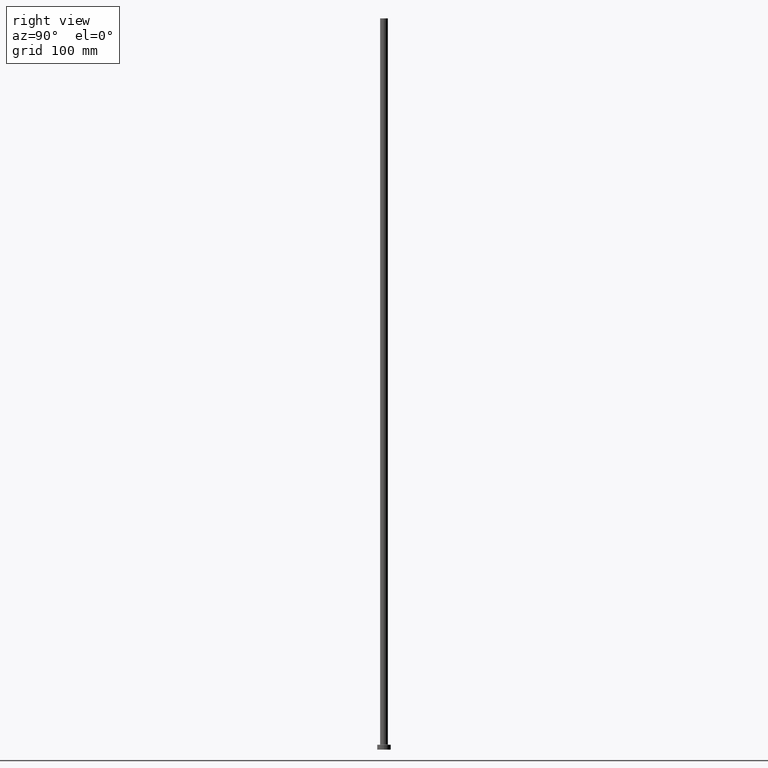
[diagram: clean part render]
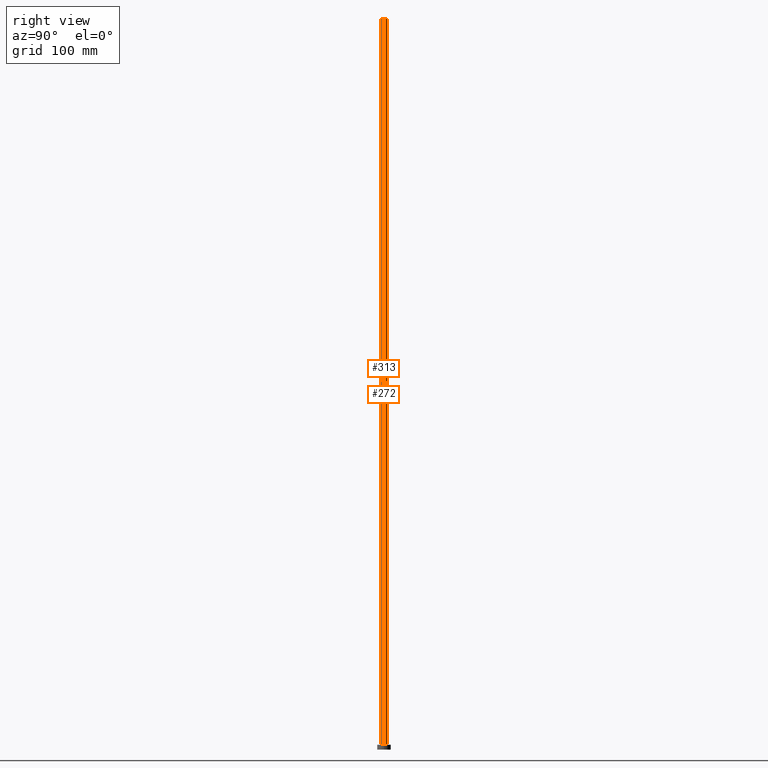
[diagram: same view with one multi-face feature highlighted, each face labeled with its STEP entity id]
A machine part, right view. The highlighted faces form ONE feature: a constant-radius fillet chain: 2 tangent blend faces with common blend radius 4 mm. The faces share edges in the B-rep.
Their STEP definitions:
[1] entity #313 (Cylinder):
#20 = CIRCLE ( 'NONE', #296, 4.000000000000000000 ) ;
#24 = CARTESIAN_POINT ( 'NONE',  ( -4.000000000000000000, 0.000000000000000000, 5.499999999999949374 ) ) ;
#32 = VERTEX_POINT ( 'NONE', #24 ) ;
#44 = CARTESIAN_POINT ( 'NONE',  ( 4.000000000000000000, 4.898587196589412829E-16, 750.0000000000000000 ) ) ;
#47 = DIRECTION ( 'NONE',  ( -0.000000000000000000, -0.000000000000000000, -1.000000000000000000 ) ) ;
#55 = AXIS2_PLACEMENT_3D ( 'NONE', #370, #452, #56 ) ;
#56 = DIRECTION ( 'NONE',  ( 1.000000000000000000, 0.000000000000000000, 0.000000000000000000 ) ) ;
#72 = CARTESIAN_POINT ( 'NONE',  ( 4.000000000000000000, 4.898587196589412829E-16, 5.499999999999949374 ) ) ;
#99 = VERTEX_POINT ( 'NONE', #454 ) ;
#100 = VECTOR ( 'NONE', #242, 1000.000000000000000 ) ;
#107 = CARTESIAN_POINT ( 'NONE',  ( 0.000000000000000000, 0.000000000000000000, 750.0000000000000000 ) ) ;
#111 = DIRECTION ( 'NONE',  ( -0.000000000000000000, -0.000000000000000000, -1.000000000000000000 ) ) ;
#120 = CIRCLE ( 'NONE', #55, 4.000000000000000000 ) ;
#145 = CYLINDRICAL_SURFACE ( 'NONE', #422, 4.000000000000000000 ) ;
#162 = ORIENTED_EDGE ( 'NONE', *, *, #234, .T. ) ;
#166 = CARTESIAN_POINT ( 'NONE',  ( -4.000000000000000000, 0.000000000000000000, 750.0000000000000000 ) ) ;
#168 = CARTESIAN_POINT ( 'NONE',  ( 0.000000000000000000, 0.000000000000000000, 750.0000000000000000 ) ) ;
#173 = EDGE_CURVE ( 'NONE', #32, #375, #120, .T. ) ;
#187 = DIRECTION ( 'NONE',  ( -1.000000000000000000, 0.000000000000000000, 0.000000000000000000 ) ) ;
#216 = LINE ( 'NONE', #44, #259 ) ;
#234 = EDGE_CURVE ( 'NONE', #99, #32, #311, .T. ) ;
#242 = DIRECTION ( 'NONE',  ( -0.000000000000000000, -0.000000000000000000, -1.000000000000000000 ) ) ;
#247 = VERTEX_POINT ( 'NONE', #346 ) ;
#259 = VECTOR ( 'NONE', #47, 1000.000000000000000 ) ;
#296 = AXIS2_PLACEMENT_3D ( 'NONE', #168, #312, #459 ) ;
#300 = EDGE_CURVE ( 'NONE', #99, #247, #20, .T. ) ;
#311 = LINE ( 'NONE', #166, #100 ) ;
#312 = DIRECTION ( 'NONE',  ( 0.000000000000000000, 0.000000000000000000, 1.000000000000000000 ) ) ;
#313 = ADVANCED_FACE ( 'NONE', ( #349 ), #145, .T. ) ;
#346 = CARTESIAN_POINT ( 'NONE',  ( 4.000000000000000000, 4.898587196589412829E-16, 750.0000000000000000 ) ) ;
#349 = FACE_OUTER_BOUND ( 'NONE', #428, .T. ) ;
#365 = ORIENTED_EDGE ( 'NONE', *, *, #366, .F. ) ;
#366 = EDGE_CURVE ( 'NONE', #247, #375, #216, .T. ) ;
#370 = CARTESIAN_POINT ( 'NONE',  ( 0.000000000000000000, 0.000000000000000000, 5.499999999999949374 ) ) ;
#375 = VERTEX_POINT ( 'NONE', #72 ) ;
#388 = ORIENTED_EDGE ( 'NONE', *, *, #300, .F. ) ;
#393 = ORIENTED_EDGE ( 'NONE', *, *, #173, .T. ) ;
#422 = AXIS2_PLACEMENT_3D ( 'NONE', #107, #111, #187 ) ;
#428 = EDGE_LOOP ( 'NONE', ( #365, #388, #162, #393 ) ) ;
#452 = DIRECTION ( 'NONE',  ( 0.000000000000000000, 0.000000000000000000, 1.000000000000000000 ) ) ;
#454 = CARTESIAN_POINT ( 'NONE',  ( -4.000000000000000000, 0.000000000000000000, 750.0000000000000000 ) ) ;
#459 = DIRECTION ( 'NONE',  ( 1.000000000000000000, 0.000000000000000000, 0.000000000000000000 ) ) ;
[2] entity #272 (Cylinder):
#16 = ORIENTED_EDGE ( 'NONE', *, *, #411, .F. ) ;
#19 = CARTESIAN_POINT ( 'NONE',  ( 0.000000000000000000, 0.000000000000000000, 5.499999999999949374 ) ) ;
#24 = CARTESIAN_POINT ( 'NONE',  ( -4.000000000000000000, 0.000000000000000000, 5.499999999999949374 ) ) ;
#25 = AXIS2_PLACEMENT_3D ( 'NONE', #276, #130, #34 ) ;
#32 = VERTEX_POINT ( 'NONE', #24 ) ;
#34 = DIRECTION ( 'NONE',  ( -1.000000000000000000, 0.000000000000000000, 0.000000000000000000 ) ) ;
#44 = CARTESIAN_POINT ( 'NONE',  ( 4.000000000000000000, 4.898587196589412829E-16, 750.0000000000000000 ) ) ;
#47 = DIRECTION ( 'NONE',  ( -0.000000000000000000, -0.000000000000000000, -1.000000000000000000 ) ) ;
#72 = CARTESIAN_POINT ( 'NONE',  ( 4.000000000000000000, 4.898587196589412829E-16, 5.499999999999949374 ) ) ;
#83 = CIRCLE ( 'NONE', #319, 4.000000000000000000 ) ;
#88 = DIRECTION ( 'NONE',  ( 1.000000000000000000, 0.000000000000000000, 0.000000000000000000 ) ) ;
#99 = VERTEX_POINT ( 'NONE', #454 ) ;
#100 = VECTOR ( 'NONE', #242, 1000.000000000000000 ) ;
#130 = DIRECTION ( 'NONE',  ( -0.000000000000000000, -0.000000000000000000, -1.000000000000000000 ) ) ;
#166 = CARTESIAN_POINT ( 'NONE',  ( -4.000000000000000000, 0.000000000000000000, 750.0000000000000000 ) ) ;
#167 = EDGE_CURVE ( 'NONE', #375, #32, #83, .T. ) ;
#211 = DIRECTION ( 'NONE',  ( 1.000000000000000000, 0.000000000000000000, 0.000000000000000000 ) ) ;
#216 = LINE ( 'NONE', #44, #259 ) ;
#234 = EDGE_CURVE ( 'NONE', #99, #32, #311, .T. ) ;
#242 = DIRECTION ( 'NONE',  ( -0.000000000000000000, -0.000000000000000000, -1.000000000000000000 ) ) ;
#247 = VERTEX_POINT ( 'NONE', #346 ) ;
#259 = VECTOR ( 'NONE', #47, 1000.000000000000000 ) ;
#272 = ADVANCED_FACE ( 'NONE', ( #351 ), #279, .T. ) ;
#276 = CARTESIAN_POINT ( 'NONE',  ( 0.000000000000000000, 0.000000000000000000, 750.0000000000000000 ) ) ;
#279 = CYLINDRICAL_SURFACE ( 'NONE', #25, 4.000000000000000000 ) ;
#310 = AXIS2_PLACEMENT_3D ( 'NONE', #357, #397, #211 ) ;
#311 = LINE ( 'NONE', #166, #100 ) ;
#319 = AXIS2_PLACEMENT_3D ( 'NONE', #19, #410, #88 ) ;
#343 = EDGE_LOOP ( 'NONE', ( #16, #405, #396, #383 ) ) ;
#346 = CARTESIAN_POINT ( 'NONE',  ( 4.000000000000000000, 4.898587196589412829E-16, 750.0000000000000000 ) ) ;
#351 = FACE_OUTER_BOUND ( 'NONE', #343, .T. ) ;
#357 = CARTESIAN_POINT ( 'NONE',  ( 0.000000000000000000, 0.000000000000000000, 750.0000000000000000 ) ) ;
#366 = EDGE_CURVE ( 'NONE', #247, #375, #216, .T. ) ;
#375 = VERTEX_POINT ( 'NONE', #72 ) ;
#383 = ORIENTED_EDGE ( 'NONE', *, *, #234, .F. ) ;
#396 = ORIENTED_EDGE ( 'NONE', *, *, #167, .T. ) ;
#397 = DIRECTION ( 'NONE',  ( 0.000000000000000000, 0.000000000000000000, 1.000000000000000000 ) ) ;
#405 = ORIENTED_EDGE ( 'NONE', *, *, #366, .T. ) ;
#410 = DIRECTION ( 'NONE',  ( 0.000000000000000000, 0.000000000000000000, 1.000000000000000000 ) ) ;
#411 = EDGE_CURVE ( 'NONE', #247, #99, #415, .T. ) ;
#415 = CIRCLE ( 'NONE', #310, 4.000000000000000000 ) ;
#454 = CARTESIAN_POINT ( 'NONE',  ( -4.000000000000000000, 0.000000000000000000, 750.0000000000000000 ) ) ;